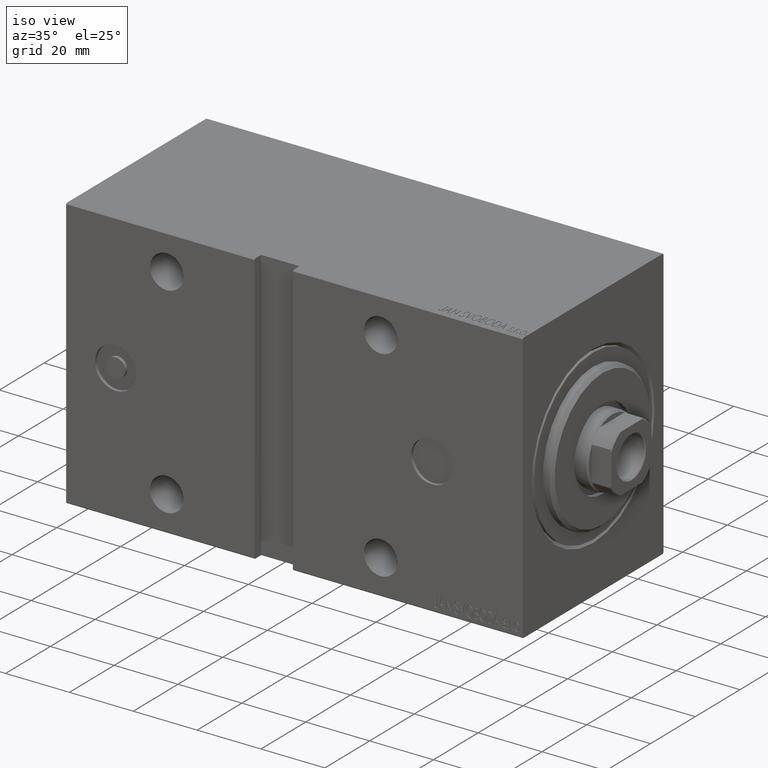
[diagram: clean part render]
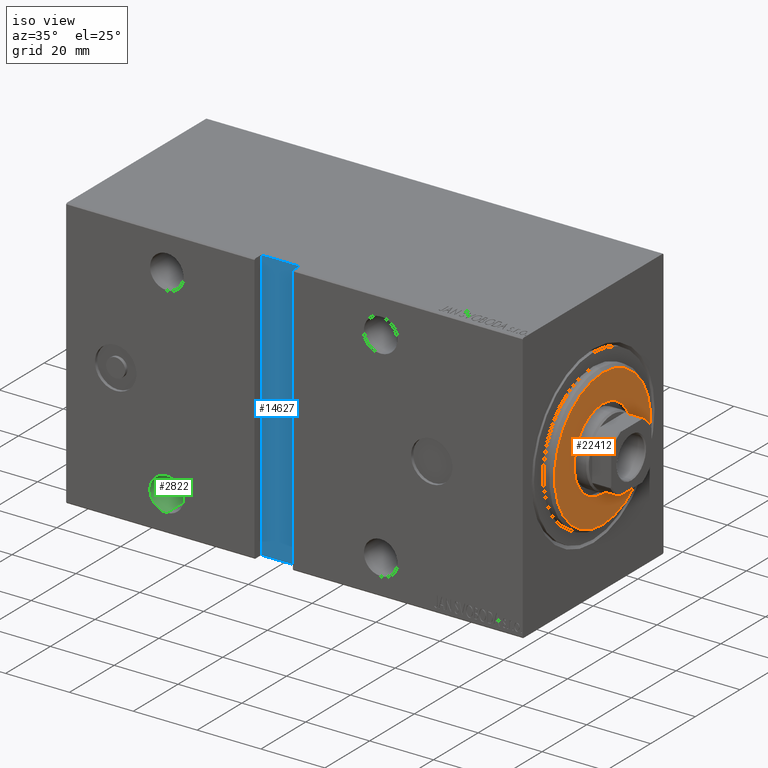
[diagram: same view with three faces highlighted in distinct colors, each labeled with its STEP entity id]
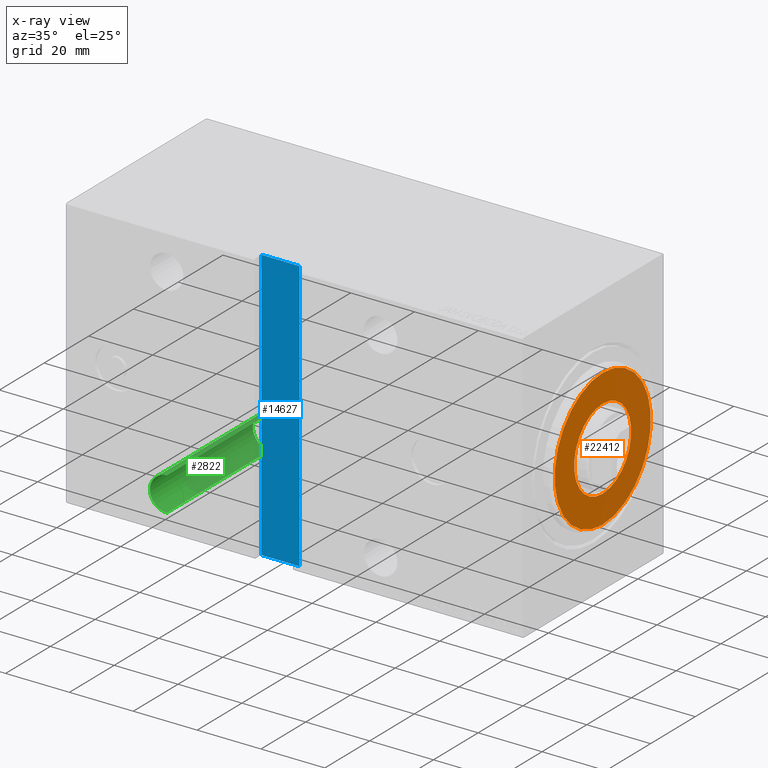
[diagram: x-ray of the same camera — body ghosted, the three highlighted faces saturated]
A machine part, iso view with three faces highlighted in distinct colors.
The next image is the same camera in x-ray (body ghosted, the three faces saturated) — at least one of them is partly hidden behind the body in this view.
Their STEP definitions:

[orange] entity #22412 — the highlighted planar face has unit normal (1, 0, 0).
#337 = CARTESIAN_POINT ( 'NONE',  ( 3.000000000000000000, 0.000000000000000000, 0.000000000000000000 ) ) ;
#1063 = CARTESIAN_POINT ( 'NONE',  ( 3.000000000000000000, 0.000000000000000000, 0.000000000000000000 ) ) ;
#1687 = AXIS2_PLACEMENT_3D ( 'NONE', #28081, #41757, #28938 ) ;
#2594 = VERTEX_POINT ( 'NONE', #14282 ) ;
#2928 = ORIENTED_EDGE ( 'NONE', *, *, #21983, .T. ) ;
#4436 = CIRCLE ( 'NONE', #1687, 12.75000000000000000 ) ;
#5347 = FACE_BOUND ( 'NONE', #28652, .T. ) ;
#7546 = EDGE_LOOP ( 'NONE', ( #42710, #2928 ) ) ;
#9450 = CARTESIAN_POINT ( 'NONE',  ( 3.000000000000000000, 0.000000000000000000, 0.000000000000000000 ) ) ;
#9481 = VERTEX_POINT ( 'NONE', #17427 ) ;
#11936 = VERTEX_POINT ( 'NONE', #35529 ) ;
#11949 = AXIS2_PLACEMENT_3D ( 'NONE', #1063, #24899, #18189 ) ;
#13244 = CARTESIAN_POINT ( 'NONE',  ( 3.000000000000000000, 1.561424668912874914E-15, -12.75000000000000000 ) ) ;
#14010 = DIRECTION ( 'NONE',  ( 0.000000000000000000, 0.000000000000000000, -1.000000000000000000 ) ) ;
#14184 = DIRECTION ( 'NONE',  ( 0.000000000000000000, 0.000000000000000000, -1.000000000000000000 ) ) ;
#14282 = CARTESIAN_POINT ( 'NONE',  ( 3.000000000000000000, 0.000000000000000000, 12.75000000000000000 ) ) ;
#14519 = CIRCLE ( 'NONE', #38749, 21.50000000000001066 ) ;
#15071 = CIRCLE ( 'NONE', #21287, 12.75000000000000000 ) ;
#16784 = AXIS2_PLACEMENT_3D ( 'NONE', #9450, #18565, #42204 ) ;
#17250 = EDGE_CURVE ( 'NONE', #9481, #11936, #14519, .T. ) ;
#17427 = CARTESIAN_POINT ( 'NONE',  ( 3.000000000000000000, 0.000000000000000000, 21.50000000000001066 ) ) ;
#17599 = EDGE_CURVE ( 'NONE', #38487, #2594, #15071, .T. ) ;
#17691 = DIRECTION ( 'NONE',  ( 1.000000000000000000, -0.000000000000000000, 0.000000000000000000 ) ) ;
#18189 = DIRECTION ( 'NONE',  ( 0.000000000000000000, 0.000000000000000000, -1.000000000000000000 ) ) ;
#18565 = DIRECTION ( 'NONE',  ( 1.000000000000000000, -0.000000000000000000, 0.000000000000000000 ) ) ;
#21287 = AXIS2_PLACEMENT_3D ( 'NONE', #33257, #23282, #14184 ) ;
#21983 = EDGE_CURVE ( 'NONE', #11936, #9481, #26461, .T. ) ;
#22412 = ADVANCED_FACE ( 'NONE', ( #25489, #5347 ), #28536, .T. ) ;
#23282 = DIRECTION ( 'NONE',  ( -1.000000000000000000, 0.000000000000000000, -0.000000000000000000 ) ) ;
#24899 = DIRECTION ( 'NONE',  ( 1.000000000000000000, -0.000000000000000000, 0.000000000000000000 ) ) ;
#25489 = FACE_OUTER_BOUND ( 'NONE', #7546, .T. ) ;
#26461 = CIRCLE ( 'NONE', #11949, 21.50000000000001066 ) ;
#27352 = EDGE_CURVE ( 'NONE', #2594, #38487, #4436, .T. ) ;
#28081 = CARTESIAN_POINT ( 'NONE',  ( 3.000000000000000000, 0.000000000000000000, 0.000000000000000000 ) ) ;
#28536 = PLANE ( 'NONE',  #16784 ) ;
#28652 = EDGE_LOOP ( 'NONE', ( #32858, #36005 ) ) ;
#28938 = DIRECTION ( 'NONE',  ( 0.000000000000000000, 0.000000000000000000, -1.000000000000000000 ) ) ;
#32858 = ORIENTED_EDGE ( 'NONE', *, *, #27352, .T. ) ;
#33257 = CARTESIAN_POINT ( 'NONE',  ( 3.000000000000000000, 0.000000000000000000, 0.000000000000000000 ) ) ;
#35529 = CARTESIAN_POINT ( 'NONE',  ( 3.000000000000000000, 2.694222958124177993E-15, -21.50000000000001066 ) ) ;
#36005 = ORIENTED_EDGE ( 'NONE', *, *, #17599, .T. ) ;
#38487 = VERTEX_POINT ( 'NONE', #13244 ) ;
#38749 = AXIS2_PLACEMENT_3D ( 'NONE', #337, #17691, #14010 ) ;
#41757 = DIRECTION ( 'NONE',  ( -1.000000000000000000, 0.000000000000000000, -0.000000000000000000 ) ) ;
#42204 = DIRECTION ( 'NONE',  ( 0.000000000000000000, 0.000000000000000000, -1.000000000000000000 ) ) ;
#42710 = ORIENTED_EDGE ( 'NONE', *, *, #17250, .T. ) ;

[blue] entity #14627 — the highlighted planar face has unit normal (-0, 1, -0).
#1723 = VECTOR ( 'NONE', #20790, 1000.000000000000000 ) ;
#1993 = EDGE_CURVE ( 'NONE', #19222, #11659, #11134, .T. ) ;
#4984 = DIRECTION ( 'NONE',  ( 0.000000000000000000, 1.632680918566408765E-16, -1.000000000000000000 ) ) ;
#5949 = VERTEX_POINT ( 'NONE', #39473 ) ;
#6173 = EDGE_CURVE ( 'NONE', #30478, #19222, #19003, .T. ) ;
#8234 = EDGE_LOOP ( 'NONE', ( #41059, #22733, #39436, #9095 ) ) ;
#8240 = DIRECTION ( 'NONE',  ( 0.000000000000000000, -1.000000000000000000, -1.632680918566408765E-16 ) ) ;
#9095 = ORIENTED_EDGE ( 'NONE', *, *, #6173, .T. ) ;
#10396 = CARTESIAN_POINT ( 'NONE',  ( 84.00000000000001421, 28.50000000000000000, 42.50000000000000000 ) ) ;
#11134 = LINE ( 'NONE', #17194, #24877 ) ;
#11502 = FACE_OUTER_BOUND ( 'NONE', #8234, .T. ) ;
#11659 = VERTEX_POINT ( 'NONE', #19723 ) ;
#14078 = AXIS2_PLACEMENT_3D ( 'NONE', #37935, #8240, #4984 ) ;
#14627 = ADVANCED_FACE ( 'NONE', ( #11502 ), #24703, .F. ) ;
#17194 = CARTESIAN_POINT ( 'NONE',  ( 72.00000000000001421, 28.50000000000001421, -42.49999999999989342 ) ) ;
#17816 = LINE ( 'NONE', #24953, #19540 ) ;
#19003 = LINE ( 'NONE', #42420, #36056 ) ;
#19222 = VERTEX_POINT ( 'NONE', #41610 ) ;
#19540 = VECTOR ( 'NONE', #31898, 1000.000000000000000 ) ;
#19723 = CARTESIAN_POINT ( 'NONE',  ( 72.00000000000001421, 28.50000000000000000, 42.50000000000000000 ) ) ;
#20142 = LINE ( 'NONE', #10396, #1723 ) ;
#20664 = DIRECTION ( 'NONE',  ( 0.000000000000000000, -1.632680918566408765E-16, 1.000000000000000000 ) ) ;
#20790 = DIRECTION ( 'NONE',  ( 1.000000000000000000, -0.000000000000000000, -0.000000000000000000 ) ) ;
#22565 = EDGE_CURVE ( 'NONE', #5949, #30478, #17816, .T. ) ;
#22733 = ORIENTED_EDGE ( 'NONE', *, *, #28712, .T. ) ;
#24703 = PLANE ( 'NONE',  #14078 ) ;
#24877 = VECTOR ( 'NONE', #20664, 1000.000000000000000 ) ;
#24953 = CARTESIAN_POINT ( 'NONE',  ( 83.99999999999998579, 28.50000000000001421, -42.49999999999989342 ) ) ;
#28712 = EDGE_CURVE ( 'NONE', #11659, #5949, #20142, .T. ) ;
#30478 = VERTEX_POINT ( 'NONE', #34051 ) ;
#31898 = DIRECTION ( 'NONE',  ( -3.265361837132817531E-16, 1.632680918566408765E-16, -1.000000000000000000 ) ) ;
#34051 = CARTESIAN_POINT ( 'NONE',  ( 84.00000000000001421, 28.50000000000001066, -42.50000000000000711 ) ) ;
#36056 = VECTOR ( 'NONE', #39576, 1000.000000000000000 ) ;
#37935 = CARTESIAN_POINT ( 'NONE',  ( 0.000000000000000000, 28.50000000000000711, 4.764459771452885517E-15 ) ) ;
#39436 = ORIENTED_EDGE ( 'NONE', *, *, #22565, .T. ) ;
#39473 = CARTESIAN_POINT ( 'NONE',  ( 84.00000000000001421, 28.50000000000000000, 42.50000000000000000 ) ) ;
#39576 = DIRECTION ( 'NONE',  ( -1.000000000000000000, 0.000000000000000000, 0.000000000000000000 ) ) ;
#41059 = ORIENTED_EDGE ( 'NONE', *, *, #1993, .T. ) ;
#41610 = CARTESIAN_POINT ( 'NONE',  ( 72.00000000000001421, 28.50000000000001421, -42.49999999999989342 ) ) ;
#42420 = CARTESIAN_POINT ( 'NONE',  ( 83.99999999999998579, 28.50000000000001421, -42.49999999999989342 ) ) ;

[green] entity #2822 — the highlighted cylindrical surface (edge-blend (fillet) strip) has radius 5.25 mm, axis along (0, -1, 0).
#425 = VECTOR ( 'NONE', #32290, 1000.000000000000000 ) ;
#2507 = CARTESIAN_POINT ( 'NONE',  ( 111.5000000000000000, 31.50000000000001421, -36.75000000000000711 ) ) ;
#2822 = ADVANCED_FACE ( 'NONE', ( #38227 ), #31723, .F. ) ;
#4016 = EDGE_LOOP ( 'NONE', ( #13142, #34484, #29509, #9466 ) ) ;
#5385 = EDGE_CURVE ( 'NONE', #19593, #25953, #40889, .T. ) ;
#5487 = DIRECTION ( 'NONE',  ( 0.000000000000000000, 0.000000000000000000, 1.000000000000000000 ) ) ;
#5648 = CARTESIAN_POINT ( 'NONE',  ( 111.5000000000000000, 31.50000000000001421, -26.24999999999999645 ) ) ;
#8536 = EDGE_CURVE ( 'NONE', #10963, #38616, #20886, .T. ) ;
#9435 = DIRECTION ( 'NONE',  ( 0.000000000000000000, 0.000000000000000000, -1.000000000000000000 ) ) ;
#9466 = ORIENTED_EDGE ( 'NONE', *, *, #5385, .F. ) ;
#10963 = VERTEX_POINT ( 'NONE', #21666 ) ;
#12001 = CARTESIAN_POINT ( 'NONE',  ( 111.5000000000000000, -31.50000000000002842, -31.50000000000000711 ) ) ;
#13142 = ORIENTED_EDGE ( 'NONE', *, *, #38700, .F. ) ;
#13245 = AXIS2_PLACEMENT_3D ( 'NONE', #35677, #26105, #9435 ) ;
#16644 = DIRECTION ( 'NONE',  ( -0.000000000000000000, 1.000000000000000000, 1.261617073437677752E-16 ) ) ;
#19593 = VERTEX_POINT ( 'NONE', #2507 ) ;
#20547 = CARTESIAN_POINT ( 'NONE',  ( 111.5000000000000000, -31.50000000000002842, -26.25000000000000355 ) ) ;
#20886 = CIRCLE ( 'NONE', #13245, 5.250000000000004441 ) ;
#21666 = CARTESIAN_POINT ( 'NONE',  ( 111.5000000000000000, -14.49999999999999289, -26.25000000000000355 ) ) ;
#22807 = AXIS2_PLACEMENT_3D ( 'NONE', #12001, #38861, #5487 ) ;
#25554 = CARTESIAN_POINT ( 'NONE',  ( 111.5000000000000000, -31.50000000000002842, -36.75000000000001421 ) ) ;
#25953 = VERTEX_POINT ( 'NONE', #5648 ) ;
#26105 = DIRECTION ( 'NONE',  ( -0.000000000000000000, 1.000000000000000000, -0.000000000000000000 ) ) ;
#27719 = AXIS2_PLACEMENT_3D ( 'NONE', #31729, #42144, #29109 ) ;
#28050 = VECTOR ( 'NONE', #16644, 1000.000000000000000 ) ;
#29109 = DIRECTION ( 'NONE',  ( 0.000000000000000000, 0.000000000000000000, -1.000000000000000000 ) ) ;
#29509 = ORIENTED_EDGE ( 'NONE', *, *, #35676, .T. ) ;
#31723 = CYLINDRICAL_SURFACE ( 'NONE', #22807, 5.250000000000004441 ) ;
#31729 = CARTESIAN_POINT ( 'NONE',  ( 111.5000000000000000, 31.50000000000001421, -31.50000000000000000 ) ) ;
#31853 = CARTESIAN_POINT ( 'NONE',  ( 111.5000000000000000, -14.49999999999999289, -36.75000000000001421 ) ) ;
#32073 = LINE ( 'NONE', #25554, #425 ) ;
#32290 = DIRECTION ( 'NONE',  ( -0.000000000000000000, 1.000000000000000000, 1.261617073437677752E-16 ) ) ;
#34484 = ORIENTED_EDGE ( 'NONE', *, *, #8536, .F. ) ;
#35676 = EDGE_CURVE ( 'NONE', #10963, #25953, #39429, .T. ) ;
#35677 = CARTESIAN_POINT ( 'NONE',  ( 111.5000000000000000, -14.49999999999999289, -31.50000000000000711 ) ) ;
#38227 = FACE_OUTER_BOUND ( 'NONE', #4016, .T. ) ;
#38616 = VERTEX_POINT ( 'NONE', #31853 ) ;
#38700 = EDGE_CURVE ( 'NONE', #38616, #19593, #32073, .T. ) ;
#38861 = DIRECTION ( 'NONE',  ( -0.000000000000000000, 1.000000000000000000, 1.261617073437677752E-16 ) ) ;
#39429 = LINE ( 'NONE', #20547, #28050 ) ;
#40889 = CIRCLE ( 'NONE', #27719, 5.250000000000004441 ) ;
#42144 = DIRECTION ( 'NONE',  ( 0.000000000000000000, -1.000000000000000000, -1.632680918566406300E-16 ) ) ;